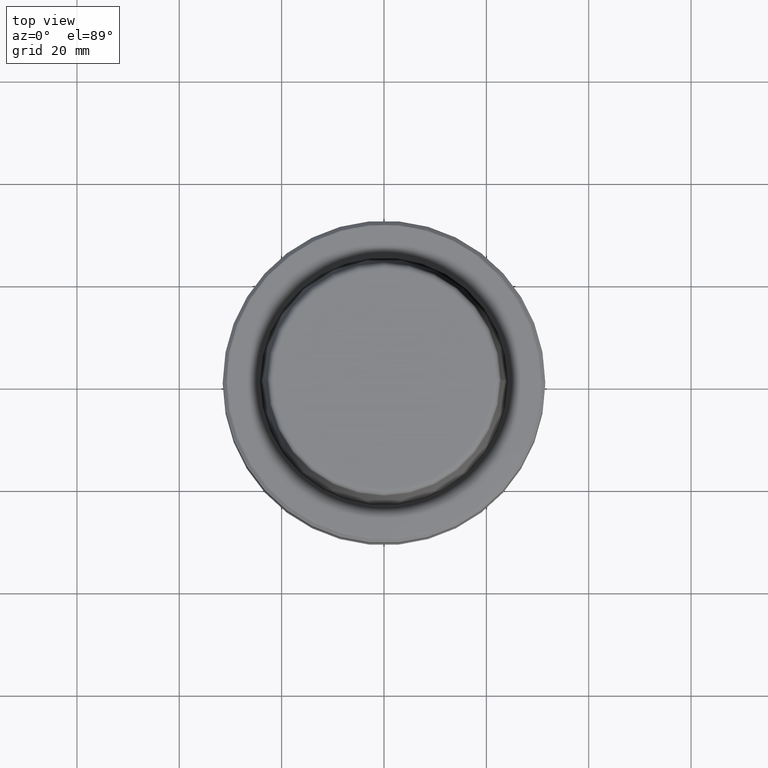
[diagram: clean part render]
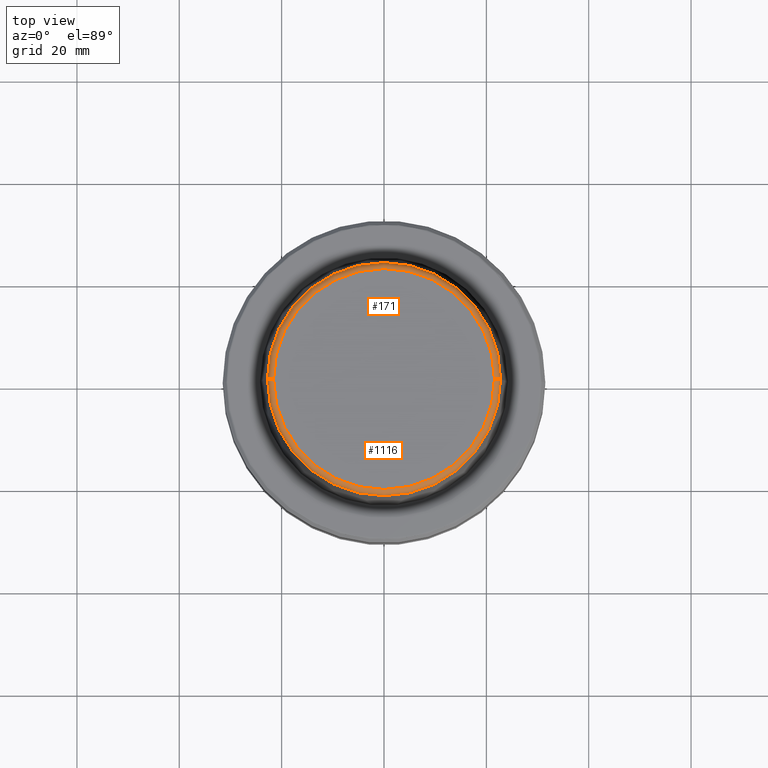
[diagram: same view with one multi-face feature highlighted, each face labeled with its STEP entity id]
A machine part, top view. The highlighted faces form ONE feature: a constant-radius fillet chain: 2 tangent blend faces with common blend radius 1.2 mm. The faces share edges in the B-rep.
Their STEP definitions:
[1] entity #171 (Torus):
#110 = CARTESIAN_POINT ( 'NONE',  ( 22.77957961851797100, 2.876386432489616700E-015, 30.76004333261571900 ) ) ;
#148 = CIRCLE ( 'NONE', #736, 1.200000000000003100 ) ;
#171 = ADVANCED_FACE ( 'NONE', ( #653 ), #839, .T. ) ;
#174 = VERTEX_POINT ( 'NONE', #688 ) ;
#194 = ORIENTED_EDGE ( 'NONE', *, *, #417, .F. ) ;
#217 = EDGE_CURVE ( 'NONE', #1045, #1010, #148, .T. ) ;
#265 = CARTESIAN_POINT ( 'NONE',  ( 0.0000000000000000000, 0.0000000000000000000, 30.76004333261571900 ) ) ;
#278 = DIRECTION ( 'NONE',  ( -0.0000000000000000000, -0.0000000000000000000, 1.000000000000000000 ) ) ;
#286 = CIRCLE ( 'NONE', #1009, 1.200000000000003100 ) ;
#314 = DIRECTION ( 'NONE',  ( 1.224646799147353200E-016, 1.000000000000000000, 0.0000000000000000000 ) ) ;
#342 = CARTESIAN_POINT ( 'NONE',  ( -21.58108272732117100, 2.716307157494421400E-015, 31.89999999999999900 ) ) ;
#362 = DIRECTION ( 'NONE',  ( 1.000000000000000000, 0.0000000000000000000, 0.0000000000000000000 ) ) ;
#378 = ORIENTED_EDGE ( 'NONE', *, *, #1107, .T. ) ;
#412 = CIRCLE ( 'NONE', #938, 22.77957961851797100 ) ;
#417 = EDGE_CURVE ( 'NONE', #174, #1010, #1253, .T. ) ;
#462 = DIRECTION ( 'NONE',  ( 1.000000000000000000, 0.0000000000000000000, 0.0000000000000000000 ) ) ;
#527 = ORIENTED_EDGE ( 'NONE', *, *, #217, .T. ) ;
#556 = CARTESIAN_POINT ( 'NONE',  ( 21.58108272732117100, 0.0000000000000000000, 30.69999999999999200 ) ) ;
#586 = EDGE_LOOP ( 'NONE', ( #378, #527, #194, #1031 ) ) ;
#632 = CARTESIAN_POINT ( 'NONE',  ( 0.0000000000000000000, 0.0000000000000000000, 30.69999999999999200 ) ) ;
#653 = FACE_OUTER_BOUND ( 'NONE', #586, .T. ) ;
#657 = DIRECTION ( 'NONE',  ( 0.0000000000000000000, 0.0000000000000000000, -1.000000000000000000 ) ) ;
#688 = CARTESIAN_POINT ( 'NONE',  ( 21.58108272732117100, 0.0000000000000000000, 31.89999999999999900 ) ) ;
#692 = AXIS2_PLACEMENT_3D ( 'NONE', #857, #278, #811 ) ;
#736 = AXIS2_PLACEMENT_3D ( 'NONE', #1013, #314, #1083 ) ;
#754 = VERTEX_POINT ( 'NONE', #110 ) ;
#811 = DIRECTION ( 'NONE',  ( 1.000000000000000000, 0.0000000000000000000, 0.0000000000000000000 ) ) ;
#829 = CARTESIAN_POINT ( 'NONE',  ( -22.77957961851797100, 0.0000000000000000000, 30.76004333261571900 ) ) ;
#839 = TOROIDAL_SURFACE ( 'NONE', #1258, 21.58108272732117100, 1.200000000000003100 ) ;
#857 = CARTESIAN_POINT ( 'NONE',  ( 0.0000000000000000000, 0.0000000000000000000, 31.89999999999999900 ) ) ;
#936 = DIRECTION ( 'NONE',  ( -0.0000000000000000000, -0.0000000000000000000, 1.000000000000000000 ) ) ;
#938 = AXIS2_PLACEMENT_3D ( 'NONE', #265, #936, #362 ) ;
#1009 = AXIS2_PLACEMENT_3D ( 'NONE', #556, #1235, #657 ) ;
#1010 = VERTEX_POINT ( 'NONE', #342 ) ;
#1013 = CARTESIAN_POINT ( 'NONE',  ( -21.58108272732117100, 2.642920388414810300E-015, 30.69999999999999200 ) ) ;
#1031 = ORIENTED_EDGE ( 'NONE', *, *, #1126, .F. ) ;
#1045 = VERTEX_POINT ( 'NONE', #829 ) ;
#1083 = DIRECTION ( 'NONE',  ( -1.000000000000000000, 1.224646799147353200E-016, 0.0000000000000000000 ) ) ;
#1107 = EDGE_CURVE ( 'NONE', #754, #1045, #412, .T. ) ;
#1126 = EDGE_CURVE ( 'NONE', #754, #174, #286, .T. ) ;
#1210 = DIRECTION ( 'NONE',  ( -0.0000000000000000000, -0.0000000000000000000, 1.000000000000000000 ) ) ;
#1235 = DIRECTION ( 'NONE',  ( 0.0000000000000000000, -1.000000000000000000, 0.0000000000000000000 ) ) ;
#1253 = CIRCLE ( 'NONE', #692, 21.58108272732117100 ) ;
#1258 = AXIS2_PLACEMENT_3D ( 'NONE', #632, #1210, #462 ) ;
[2] entity #1116 (Torus):
#11 = CIRCLE ( 'NONE', #1117, 21.58108272732117100 ) ;
#70 = DIRECTION ( 'NONE',  ( 1.000000000000000000, 0.0000000000000000000, 0.0000000000000000000 ) ) ;
#110 = CARTESIAN_POINT ( 'NONE',  ( 22.77957961851797100, 2.876386432489616700E-015, 30.76004333261571900 ) ) ;
#148 = CIRCLE ( 'NONE', #736, 1.200000000000003100 ) ;
#155 = EDGE_LOOP ( 'NONE', ( #691, #1114, #1173, #853 ) ) ;
#174 = VERTEX_POINT ( 'NONE', #688 ) ;
#199 = CARTESIAN_POINT ( 'NONE',  ( 0.0000000000000000000, 0.0000000000000000000, 31.89999999999999900 ) ) ;
#217 = EDGE_CURVE ( 'NONE', #1045, #1010, #148, .T. ) ;
#286 = CIRCLE ( 'NONE', #1009, 1.200000000000003100 ) ;
#303 = DIRECTION ( 'NONE',  ( 1.000000000000000000, 0.0000000000000000000, 0.0000000000000000000 ) ) ;
#314 = DIRECTION ( 'NONE',  ( 1.224646799147353200E-016, 1.000000000000000000, 0.0000000000000000000 ) ) ;
#342 = CARTESIAN_POINT ( 'NONE',  ( -21.58108272732117100, 2.716307157494421400E-015, 31.89999999999999900 ) ) ;
#556 = CARTESIAN_POINT ( 'NONE',  ( 21.58108272732117100, 0.0000000000000000000, 30.69999999999999200 ) ) ;
#636 = TOROIDAL_SURFACE ( 'NONE', #1195, 21.58108272732117100, 1.200000000000003100 ) ;
#649 = DIRECTION ( 'NONE',  ( -0.0000000000000000000, -0.0000000000000000000, 1.000000000000000000 ) ) ;
#657 = DIRECTION ( 'NONE',  ( 0.0000000000000000000, 0.0000000000000000000, -1.000000000000000000 ) ) ;
#688 = CARTESIAN_POINT ( 'NONE',  ( 21.58108272732117100, 0.0000000000000000000, 31.89999999999999900 ) ) ;
#691 = ORIENTED_EDGE ( 'NONE', *, *, #217, .F. ) ;
#703 = EDGE_CURVE ( 'NONE', #1010, #174, #11, .T. ) ;
#736 = AXIS2_PLACEMENT_3D ( 'NONE', #1013, #314, #1083 ) ;
#754 = VERTEX_POINT ( 'NONE', #110 ) ;
#829 = CARTESIAN_POINT ( 'NONE',  ( -22.77957961851797100, 0.0000000000000000000, 30.76004333261571900 ) ) ;
#837 = DIRECTION ( 'NONE',  ( 1.000000000000000000, 0.0000000000000000000, 0.0000000000000000000 ) ) ;
#853 = ORIENTED_EDGE ( 'NONE', *, *, #703, .F. ) ;
#872 = DIRECTION ( 'NONE',  ( -0.0000000000000000000, -0.0000000000000000000, 1.000000000000000000 ) ) ;
#873 = AXIS2_PLACEMENT_3D ( 'NONE', #1226, #649, #70 ) ;
#1009 = AXIS2_PLACEMENT_3D ( 'NONE', #556, #1235, #657 ) ;
#1010 = VERTEX_POINT ( 'NONE', #342 ) ;
#1013 = CARTESIAN_POINT ( 'NONE',  ( -21.58108272732117100, 2.642920388414810300E-015, 30.69999999999999200 ) ) ;
#1045 = VERTEX_POINT ( 'NONE', #829 ) ;
#1083 = DIRECTION ( 'NONE',  ( -1.000000000000000000, 1.224646799147353200E-016, 0.0000000000000000000 ) ) ;
#1092 = EDGE_CURVE ( 'NONE', #1045, #754, #1178, .T. ) ;
#1114 = ORIENTED_EDGE ( 'NONE', *, *, #1092, .T. ) ;
#1116 = ADVANCED_FACE ( 'NONE', ( #1147 ), #636, .T. ) ;
#1117 = AXIS2_PLACEMENT_3D ( 'NONE', #199, #872, #303 ) ;
#1126 = EDGE_CURVE ( 'NONE', #754, #174, #286, .T. ) ;
#1127 = DIRECTION ( 'NONE',  ( -0.0000000000000000000, -0.0000000000000000000, 1.000000000000000000 ) ) ;
#1147 = FACE_OUTER_BOUND ( 'NONE', #155, .T. ) ;
#1173 = ORIENTED_EDGE ( 'NONE', *, *, #1126, .T. ) ;
#1178 = CIRCLE ( 'NONE', #873, 22.77957961851797100 ) ;
#1195 = AXIS2_PLACEMENT_3D ( 'NONE', #1229, #1127, #837 ) ;
#1226 = CARTESIAN_POINT ( 'NONE',  ( 0.0000000000000000000, 0.0000000000000000000, 30.76004333261571900 ) ) ;
#1229 = CARTESIAN_POINT ( 'NONE',  ( 0.0000000000000000000, 0.0000000000000000000, 30.69999999999999200 ) ) ;
#1235 = DIRECTION ( 'NONE',  ( 0.0000000000000000000, -1.000000000000000000, 0.0000000000000000000 ) ) ;